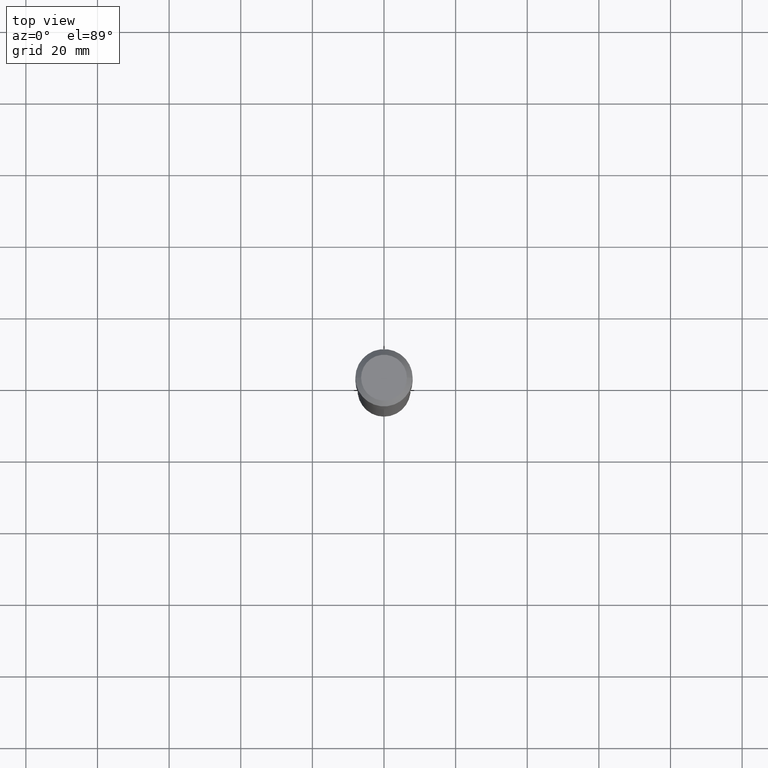
[diagram: clean part render]
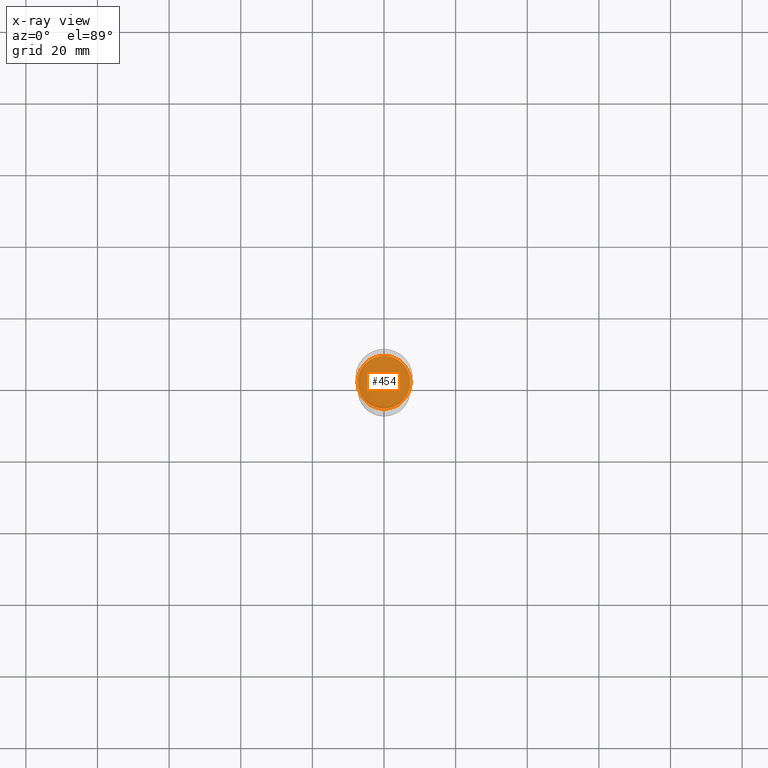
[diagram: x-ray — body ghosted, one internal face saturated and labeled with its STEP entity id]
A machine part, top view, then the same camera in x-ray: the body is ghosted and one INTERNAL B-rep face — a face not visible from any outside direction — is saturated and labeled: STEP entity #454.
In plain terms, the highlighted planar face has unit normal (-0, 0, 1).
Its self-contained STEP definition (entity closure, byte-faithful):
#15 = EDGE_CURVE ( 'NONE', #418, #174, #483, .T. ) ;
#28 = DIRECTION ( 'NONE',  ( -2.445468806185136597E-29, 3.491481338843145583E-15, 1.000000000000000000 ) ) ;
#46 = DIRECTION ( 'NONE',  ( 1.000000000000000000, -6.982962677686265922E-15, 4.876176775795935793E-29 ) ) ;
#55 = CARTESIAN_POINT ( 'NONE',  ( -0.2908499999999999974, -8.240034175069792837E-15, -2.952700000000000546 ) ) ;
#78 = EDGE_LOOP ( 'NONE', ( #153, #112 ) ) ;
#112 = ORIENTED_EDGE ( 'NONE', *, *, #224, .F. ) ;
#149 = FACE_OUTER_BOUND ( 'NONE', #78, .T. ) ;
#153 = ORIENTED_EDGE ( 'NONE', *, *, #15, .F. ) ;
#174 = VERTEX_POINT ( 'NONE', #55 ) ;
#206 = CARTESIAN_POINT ( 'NONE',  ( 7.220735744022853640E-29, -1.030929694920215659E-14, -2.952700000000000546 ) ) ;
#224 = EDGE_CURVE ( 'NONE', #174, #418, #455, .T. ) ;
#239 = AXIS2_PLACEMENT_3D ( 'NONE', #269, #262, #46 ) ;
#247 = DIRECTION ( 'NONE',  ( 1.000000000000000000, -6.982962677686269077E-15, 0.000000000000000000 ) ) ;
#262 = DIRECTION ( 'NONE',  ( -2.438088387897960049E-29, 3.491481338843145188E-15, 1.000000000000000000 ) ) ;
#263 = DIRECTION ( 'NONE',  ( -2.445468806185136597E-29, 3.491481338843145583E-15, 1.000000000000000000 ) ) ;
#269 = CARTESIAN_POINT ( 'NONE',  ( 7.220735744022853640E-29, -1.030929694920215659E-14, -2.952700000000000546 ) ) ;
#283 = AXIS2_PLACEMENT_3D ( 'NONE', #365, #263, #457 ) ;
#365 = CARTESIAN_POINT ( 'NONE',  ( 7.220735744022853640E-29, -1.030929694920215659E-14, -2.952700000000000546 ) ) ;
#381 = AXIS2_PLACEMENT_3D ( 'NONE', #206, #28, #247 ) ;
#418 = VERTEX_POINT ( 'NONE', #459 ) ;
#451 = PLANE ( 'NONE',  #239 ) ;
#454 = ADVANCED_FACE ( 'NONE', ( #149 ), #451, .F. ) ;
#455 = CIRCLE ( 'NONE', #381, 0.2908499999999999974 ) ;
#457 = DIRECTION ( 'NONE',  ( 1.000000000000000000, -6.982962677686269077E-15, 0.000000000000000000 ) ) ;
#459 = CARTESIAN_POINT ( 'NONE',  ( 0.2908499999999999974, -1.234029164400720879E-14, -2.952700000000000546 ) ) ;
#483 = CIRCLE ( 'NONE', #283, 0.2908499999999999974 ) ;